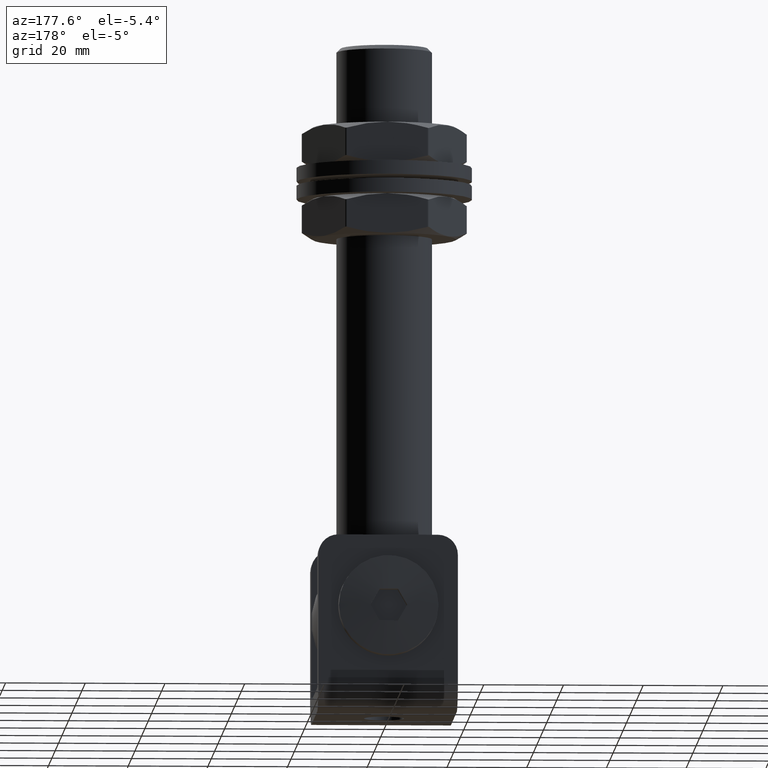
[diagram: clean part render]
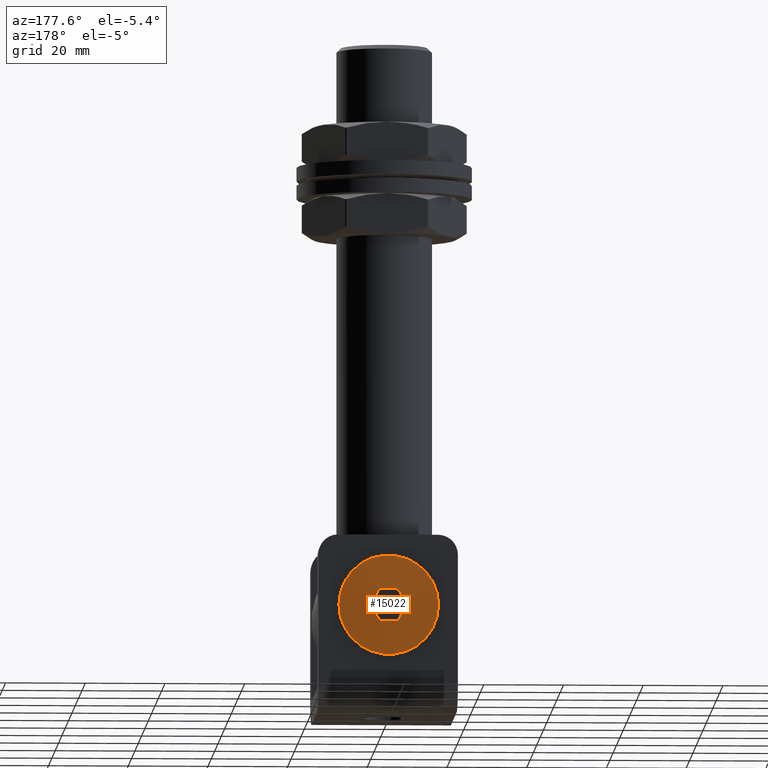
[diagram: same view with one face highlighted and labeled with its STEP entity id]
A machine part, auxiliary view. The second image highlights one B-rep face of the part: STEP entity #15022.
In plain terms, the highlighted spherical surface has radius 156.5 mm.
Its self-contained STEP definition (entity closure, byte-faithful):
#200 = CIRCLE ( 'NONE', #8739, 156.4488734379385164 ) ;
#256 = CARTESIAN_POINT ( 'NONE',  ( -4.618802153517002296, 18.93182753732273227, 0.000000000000000000 ) ) ;
#361 = DIRECTION ( 'NONE',  ( 1.000000000000000000, 7.114136124656936990E-14, 0.000000000000000000 ) ) ;
#688 = DIRECTION ( 'NONE',  ( 0.5000000000000000000, 1.066233369306438822E-13, -0.8660254037844387076 ) ) ;
#935 = CARTESIAN_POINT ( 'NONE',  ( 2.309401076758503368, 18.93182753732273227, -4.000000000000000000 ) ) ;
#1718 = FACE_OUTER_BOUND ( 'NONE', #6714, .T. ) ;
#1793 = CARTESIAN_POINT ( 'NONE',  ( 2.489159519226945511E-14, -137.5000000000002842, 0.000000000000000000 ) ) ;
#1818 = EDGE_CURVE ( 'NONE', #19421, #8339, #10710, .T. ) ;
#1981 = ORIENTED_EDGE ( 'NONE', *, *, #1818, .F. ) ;
#2519 = CARTESIAN_POINT ( 'NONE',  ( -2.309401076758499816, 18.93182753732273227, 4.000000000000000000 ) ) ;
#3214 = EDGE_CURVE ( 'NONE', #8339, #19809, #6947, .T. ) ;
#3945 = ORIENTED_EDGE ( 'NONE', *, *, #7265, .F. ) ;
#3955 = ORIENTED_EDGE ( 'NONE', *, *, #3214, .F. ) ;
#4125 = EDGE_LOOP ( 'NONE', ( #18135, #10536, #4907, #3945, #3955, #1981 ) ) ;
#4239 = EDGE_CURVE ( 'NONE', #16638, #19421, #22686, .T. ) ;
#4907 = ORIENTED_EDGE ( 'NONE', *, *, #20482, .F. ) ;
#5532 = DIRECTION ( 'NONE',  ( 0.8660254037844387076, -0.000000000000000000, -0.4999999999999998890 ) ) ;
#5598 = DIRECTION ( 'NONE',  ( 0.5000000000000000000, 1.066233369306438822E-13, 0.8660254037844387076 ) ) ;
#5694 = CIRCLE ( 'NONE', #18790, 156.4488734379384880 ) ;
#6187 = CARTESIAN_POINT ( 'NONE',  ( -3.464101615137745949, -137.5000000000002842, 2.000000000000008882 ) ) ;
#6714 = EDGE_LOOP ( 'NONE', ( #12634 ) ) ;
#6947 = CIRCLE ( 'NONE', #11666, 156.4488734379384880 ) ;
#7265 = EDGE_CURVE ( 'NONE', #19809, #17180, #17594, .T. ) ;
#7598 = DIRECTION ( 'NONE',  ( 1.000000000000000000, 0.000000000000000000, 0.000000000000000000 ) ) ;
#8269 = CARTESIAN_POINT ( 'NONE',  ( 3.464101615137761936, -137.5000000000002842, 1.999999999999989564 ) ) ;
#8332 = FACE_OUTER_BOUND ( 'NONE', #4125, .T. ) ;
#8339 = VERTEX_POINT ( 'NONE', #14336 ) ;
#8589 = AXIS2_PLACEMENT_3D ( 'NONE', #12781, #22011, #14644 ) ;
#8739 = AXIS2_PLACEMENT_3D ( 'NONE', #16894, #20805, #361 ) ;
#9756 = VERTEX_POINT ( 'NONE', #22560 ) ;
#10536 = ORIENTED_EDGE ( 'NONE', *, *, #20538, .F. ) ;
#10710 = CIRCLE ( 'NONE', #8589, 156.4488734379385164 ) ;
#10861 = EDGE_CURVE ( 'NONE', #9756, #9756, #11808, .T. ) ;
#10899 = DIRECTION ( 'NONE',  ( 0.8660254037844387076, 0.000000000000000000, 0.4999999999999998890 ) ) ;
#11488 = AXIS2_PLACEMENT_3D ( 'NONE', #17985, #17846, #14058 ) ;
#11666 = AXIS2_PLACEMENT_3D ( 'NONE', #21824, #10899, #23769 ) ;
#11808 = CIRCLE ( 'NONE', #16818, 12.49999999999999112 ) ;
#12594 = CARTESIAN_POINT ( 'NONE',  ( 4.618802153517008513, 18.93182753732273227, -8.673617379884035472E-16 ) ) ;
#12634 = ORIENTED_EDGE ( 'NONE', *, *, #10861, .F. ) ;
#12781 = CARTESIAN_POINT ( 'NONE',  ( 2.338928059353229548E-14, -137.5000000000002842, -3.999999999999999112 ) ) ;
#13979 = VERTEX_POINT ( 'NONE', #18716 ) ;
#14058 = DIRECTION ( 'NONE',  ( -0.5000000000000003331, 7.114136124656935728E-14, -0.8660254037844383745 ) ) ;
#14084 = SPHERICAL_SURFACE ( 'NONE', #23661, 156.5000000000003126 ) ;
#14336 = CARTESIAN_POINT ( 'NONE',  ( -2.309401076758500704, 18.93182753732273227, -3.999999999999998224 ) ) ;
#14455 = AXIS2_PLACEMENT_3D ( 'NONE', #6187, #5532, #5598 ) ;
#14644 = DIRECTION ( 'NONE',  ( -1.000000000000000000, 7.114136124656936990E-14, 3.769959916432915292E-16 ) ) ;
#14654 = DIRECTION ( 'NONE',  ( 1.000000000000000000, -1.773519208666380910E-16, 0.000000000000000000 ) ) ;
#15022 = ADVANCED_FACE ( 'NONE', ( #8332, #1718 ), #14084, .T. ) ;
#15418 = DIRECTION ( 'NONE',  ( -0.8660254037844387076, -0.000000000000000000, -0.4999999999999998890 ) ) ;
#16638 = VERTEX_POINT ( 'NONE', #12594 ) ;
#16818 = AXIS2_PLACEMENT_3D ( 'NONE', #20445, #18587, #7598 ) ;
#16894 = CARTESIAN_POINT ( 'NONE',  ( 2.489159519226945511E-14, -137.5000000000002842, 4.000000000000000000 ) ) ;
#17180 = VERTEX_POINT ( 'NONE', #2519 ) ;
#17594 = CIRCLE ( 'NONE', #14455, 156.4488734379384880 ) ;
#17846 = DIRECTION ( 'NONE',  ( -0.8660254037844385966, -0.000000000000000000, 0.5000000000000004441 ) ) ;
#17985 = CARTESIAN_POINT ( 'NONE',  ( 3.464101615137760604, -137.5000000000002842, -1.999999999999990896 ) ) ;
#18135 = ORIENTED_EDGE ( 'NONE', *, *, #4239, .F. ) ;
#18577 = DIRECTION ( 'NONE',  ( -0.000000000000000000, 0.000000000000000000, 1.000000000000000000 ) ) ;
#18587 = DIRECTION ( 'NONE',  ( -1.252009581588831962E-16, -1.000000000000000000, -0.000000000000000000 ) ) ;
#18716 = CARTESIAN_POINT ( 'NONE',  ( 2.309401076758504701, 18.93182753732273227, 4.000000000000000000 ) ) ;
#18790 = AXIS2_PLACEMENT_3D ( 'NONE', #8269, #15418, #688 ) ;
#19421 = VERTEX_POINT ( 'NONE', #935 ) ;
#19809 = VERTEX_POINT ( 'NONE', #256 ) ;
#20445 = CARTESIAN_POINT ( 'NONE',  ( 2.316217725939341262E-15, 18.50000000000002487, 0.000000000000000000 ) ) ;
#20482 = EDGE_CURVE ( 'NONE', #17180, #13979, #200, .T. ) ;
#20538 = EDGE_CURVE ( 'NONE', #13979, #16638, #5694, .T. ) ;
#20805 = DIRECTION ( 'NONE',  ( 0.000000000000000000, -0.000000000000000000, -1.000000000000000000 ) ) ;
#21824 = CARTESIAN_POINT ( 'NONE',  ( -3.464101615137745949, -137.5000000000002842, -2.000000000000008882 ) ) ;
#22011 = DIRECTION ( 'NONE',  ( 3.755786496842900043E-16, 0.000000000000000000, 1.000000000000000000 ) ) ;
#22560 = CARTESIAN_POINT ( 'NONE',  ( 12.49999999999999289, 18.50000000000002487, 0.000000000000000000 ) ) ;
#22686 = CIRCLE ( 'NONE', #11488, 156.4488734379385448 ) ;
#23661 = AXIS2_PLACEMENT_3D ( 'NONE', #1793, #18577, #14654 ) ;
#23769 = DIRECTION ( 'NONE',  ( -0.5000000000000000000, 7.114136124656938253E-14, 0.8660254037844387076 ) ) ;